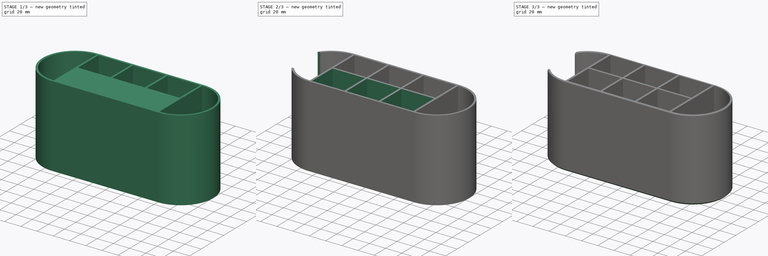
[diagram: build sequence overview — one tinted view per stage of 3, left to right]
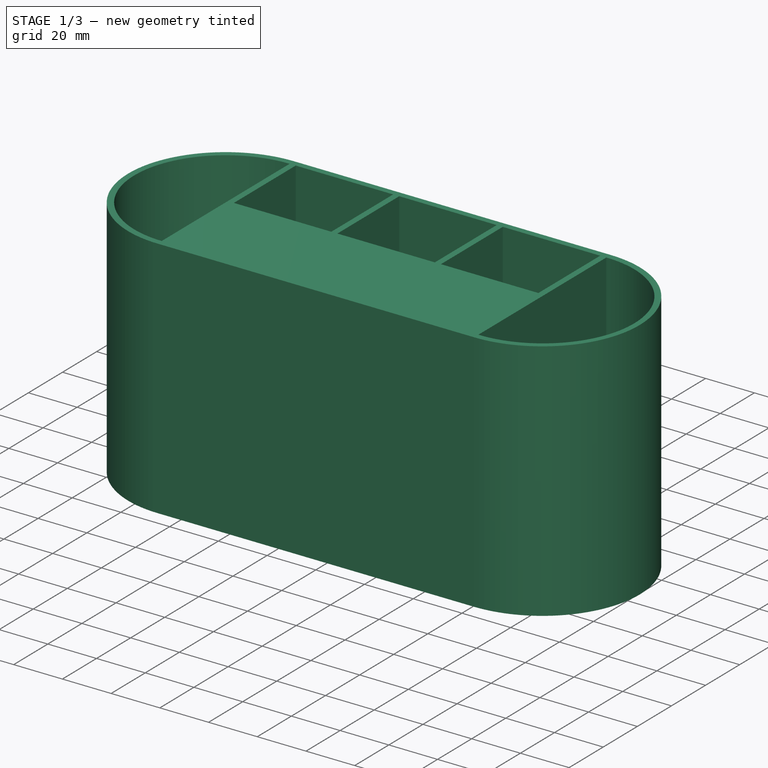
[diagram: stage 1 of 3 — iso view after this stage's code; geometry added in this stage tinted green]
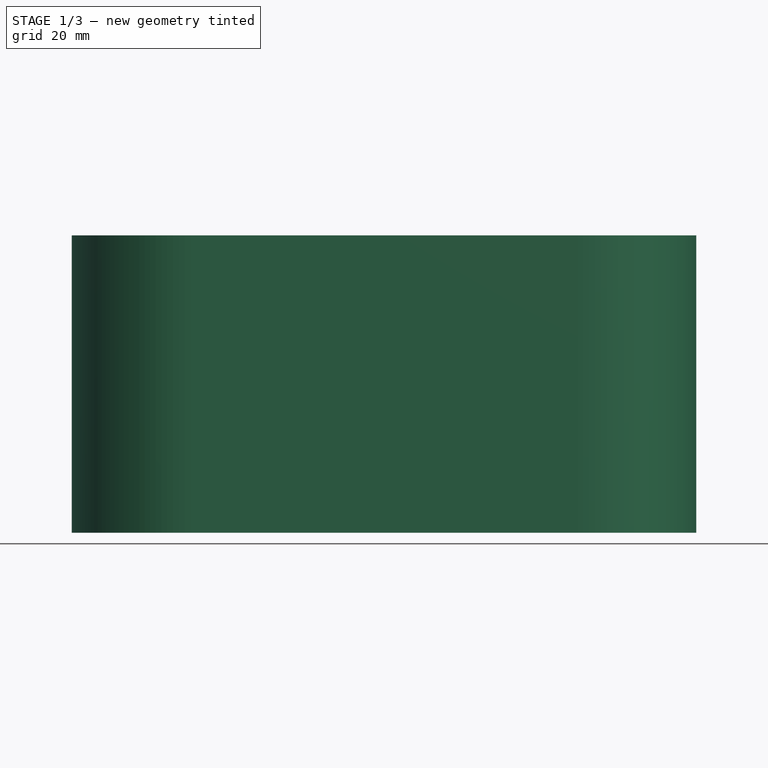
[diagram: stage 1 of 3 — front view after this stage's code; geometry added in this stage tinted green]
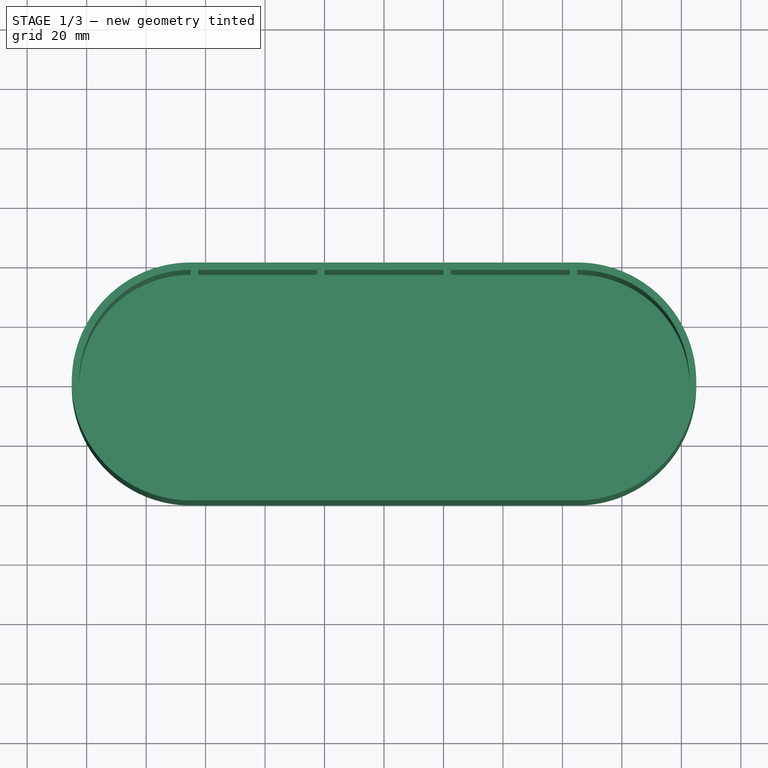
[diagram: stage 1 of 3 — top view after this stage's code; geometry added in this stage tinted green]
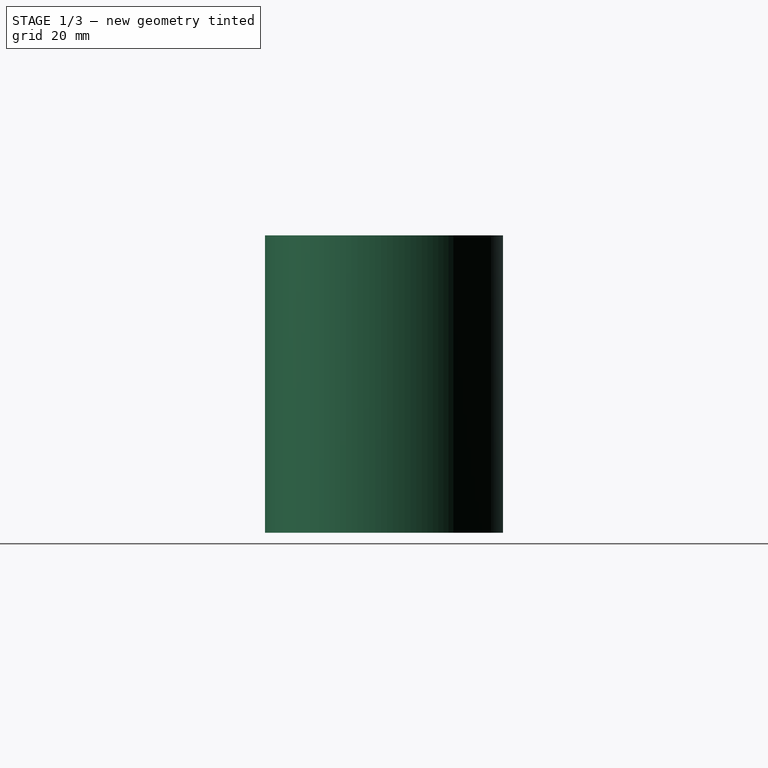
[diagram: stage 1 of 3 — right view after this stage's code; geometry added in this stage tinted green]
FCSTD DOCUMENT  (FreeCAD 0.19R24291 (Git))
Label: pencil holder
License: All rights reserved
LicenseURL: http://en.wikipedia.org/wiki/All_rights_reserved
objects: Sketcher::SketchObject×4, PartDesign::Pocket×3, PartDesign::Fillet×2, PartDesign::Pad×1, PartDesign::Mirrored×1, Spreadsheet::Sheet×1, PartDesign::Plane×1, PartDesign::Chamfer×1, PartDesign::Body×1
note: 21 computed .brp shape members not serialized (recipe doc carries the construction recipe); baked Part::Feature solids carry a one-line shape summary decoded from their .brp

FEATURE [Sketcher::SketchObject] Sketch
  FullyConstrained = true
  MapMode = 5
  Support = -> [XY_Plane]
  expr: Constraints[8] = Spreadsheet.width
  sketch-geometry (4):
    g0: LineSegment StartX=-65 StartY=40 StartZ=0 EndX=65 EndY=40 EndZ=0
    g1: ArcOfCircle CenterX=65 CenterY=-9e-16 CenterZ=0 NormalX=0 NormalY=0 NormalZ=1 AngleXU=0 Radius=40 StartAngle=4.71239 EndAngle=7.85398
    g2: LineSegment StartX=65 StartY=-40 StartZ=0 EndX=-65.0001 EndY=-40 EndZ=0
    g3: ArcOfCircle CenterX=-65.0001 CenterY=-6.3e-15 CenterZ=0 NormalX=0 NormalY=0 NormalZ=1 AngleXU=0 Radius=40 StartAngle=1.5708 EndAngle=4.71239
  constraints (10):
    c: Horizontal(g0)
    c: Tangent(g0,g1) = 1.5708
    c: Tangent(g1,g2) = 1.5708
    c: Tangent(g2,g3) = 1.5708
    c: Coincident(g3,g0)
    c: Radius(g3) = 40
    c: Equal(g1,g3)
    c: DistanceY(g2,g0) = 80
    c: DistanceX(g0,g0) = 130
    c: Symmetric(g0,g1,g-1)
FEATURE [PartDesign::Pad] Pad
  Direction = (1,1,1)
  Length = 100
  Length2 = 100
  Profile = -> Sketch
  Type = 0
FEATURE [Sketcher::SketchObject] Sketch001
  ExternalGeometry = -> [Pad]
  FullyConstrained = true
  MapMode = 5
  Placement = pos=(0,0,100) rot=(0,0,1;0rad)
  Support = -> [Pad]
  expr: Constraints[1] = (Spreadsheet.depth - 5) / 2
  expr: Constraints[10] = Spreadsheet.depth - 5
  expr: Constraints[11] = Spreadsheet.width
  sketch-geometry (4):
    g0: ArcOfCircle CenterX=65.2422 CenterY=-0.000781912 CenterZ=0 NormalX=0 NormalY=0 NormalZ=1 AngleXU=0 Radius=37.5 StartAngle=4.70593 EndAngle=7.86044
    g1: ArcOfCircle CenterX=-65 CenterY=-2.1e-15 CenterZ=0 NormalX=0 NormalY=0 NormalZ=1 AngleXU=0 Radius=37.5 StartAngle=1.5708 EndAngle=4.71239
    g2: LineSegment StartX=-65 StartY=37.5 StartZ=0 EndX=-65 EndY=-37.5 EndZ=0
    g3: LineSegment StartX=65 StartY=37.4984 StartZ=0 EndX=65 EndY=-37.5 EndZ=0
  constraints (13):
    c: Symmetric(g1,g0,g-1)
    c: Radius(g0) = 37.5
    c: Equal(g1,g0)
    c: Coincident(g2,g1)
    c: Coincident(g2,g1)
    c: Vertical(g2)
    c: Coincident(g3,g0)
    c: Coincident(g3,g0)
    c: Vertical(g3)
    c: DistanceY(g1,g-3) = 2.5
    c: DistanceY(g1,g1) = 75
    c: DistanceX(g1,g0) = 130
    c: Angle(g0) = 3.15451
FEATURE [PartDesign::Pocket] Pocket
  BaseFeature = -> Pad
  Length = 95
  Length2 = 100
  Profile = -> Sketch001
  Type = 0
FEATURE [Sketcher::SketchObject] Sketch002
  ExternalGeometry = -> [Pocket]
  FullyConstrained = true
  MapMode = 5
  Placement = pos=(0,0,100) rot=(0,0,1;0rad)
  Support = -> [Pocket]
  sketch-geometry (12):
    g0: LineSegment StartX=-62.5 StartY=37.5 StartZ=0 EndX=-22.5 EndY=37.5 EndZ=0
    g1: LineSegment StartX=-22.5 StartY=37.5 StartZ=0 EndX=-22.5 EndY=1.25 EndZ=0
    g2: LineSegment StartX=-22.5 StartY=1.25 StartZ=0 EndX=-62.5 EndY=1.25 EndZ=0
    g3: LineSegment StartX=-62.5 StartY=1.25 StartZ=0 EndX=-62.5 EndY=37.5 EndZ=0
    g4: LineSegment StartX=-20 StartY=37.5 StartZ=0 EndX=20 EndY=37.5 EndZ=0
    g5: LineSegment StartX=20 StartY=37.5 StartZ=0 EndX=20 EndY=1.25 EndZ=0
    g6: LineSegment StartX=20 StartY=1.25 StartZ=0 EndX=-20 EndY=1.25 EndZ=0
    g7: LineSegment StartX=-20 StartY=1.25 StartZ=0 EndX=-20 EndY=37.5 EndZ=0
    g8: LineSegment StartX=22.5 StartY=37.5 StartZ=0 EndX=62.5 EndY=37.5 EndZ=0
    g9: LineSegment StartX=62.5 StartY=37.5 StartZ=0 EndX=62.5 EndY=1.25 EndZ=0
    g10: LineSegment StartX=62.5 StartY=1.25 StartZ=0 EndX=22.5 EndY=1.25 EndZ=0
    g11: LineSegment StartX=22.5 StartY=1.25 StartZ=0 EndX=22.5 EndY=37.5 EndZ=0
  constraints (36):
    c: Coincident(g0,g1)
    c: Coincident(g1,g2)
    c: Coincident(g2,g3)
    c: Coincident(g3,g0)
    c: Horizontal(g0)
    c: Horizontal(g2)
    c: Vertical(g1)
    c: Vertical(g3)
    c: DistanceY(g0,g-3) = 2.5
    c: DistanceY(g1,g1) = 36.25
    c: Coincident(g4,g5)
    c: Coincident(g5,g6)
    c: Coincident(g6,g7)
    c: Coincident(g7,g4)
    c: Horizontal(g4)
    c: Horizontal(g6)
    c: Vertical(g5)
    c: Vertical(g7)
    c: Coincident(g8,g9)
    c: Coincident(g9,g10)
    c: Coincident(g10,g11)
    c: Coincident(g11,g8)
    c: Horizontal(g8)
    c: Horizontal(g10)
    c: Vertical(g9)
    c: Vertical(g11)
    c: DistanceX(g0,g4) = 2.5
    c: DistanceX(g4,g4) = 40
    c: DistanceX(g0,g0) = 40
    c: DistanceX(g8,g8) = 40
    c: DistanceX(g4,g8) = 2.5
    c: DistanceY(g8,g-3) = 2.5
    c: DistanceY(g4,g-3) = 2.5
    c: DistanceX(g-4,g0) = 2.5
    c: Equal(g1,g7)
    c: Equal(g7,g11)
FEATURE [PartDesign::Pocket] Pocket001
  BaseFeature = -> Pocket
  Length = 95
  Length2 = 100
  Profile = -> Sketch002
  Type = 0
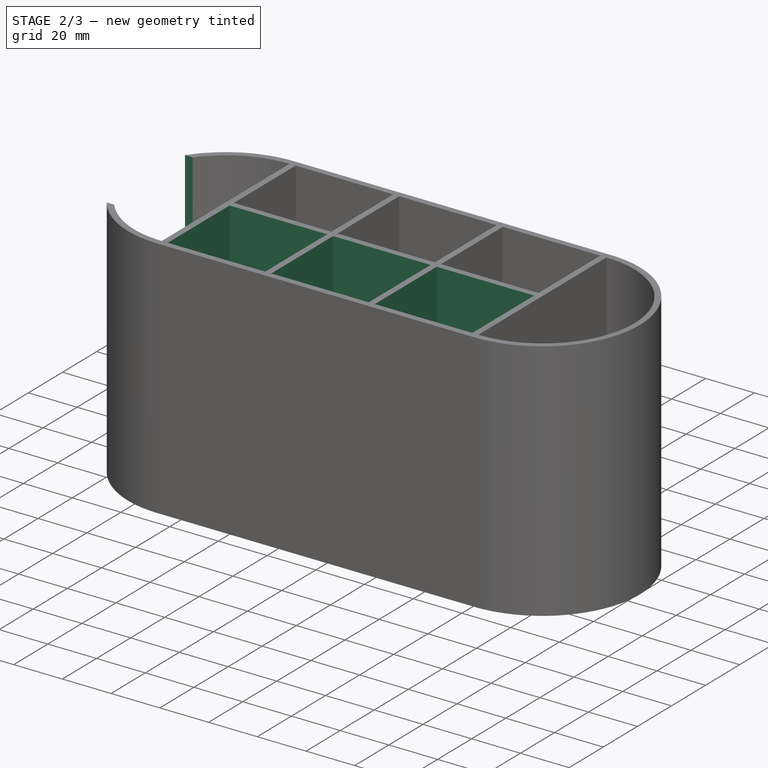
[diagram: stage 2 of 3 — iso view after this stage's code; geometry added in this stage tinted green]
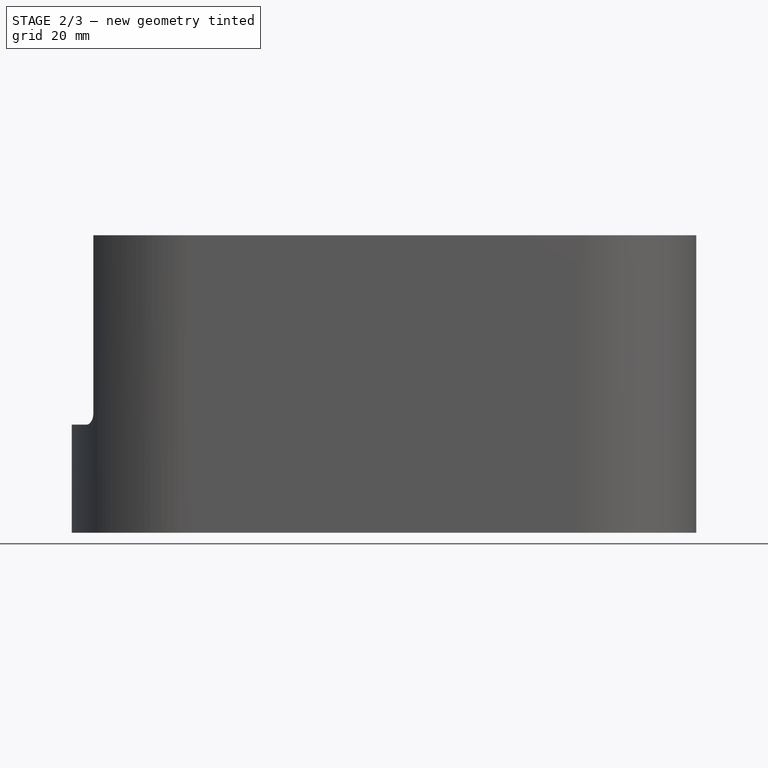
[diagram: stage 2 of 3 — front view after this stage's code; geometry added in this stage tinted green]
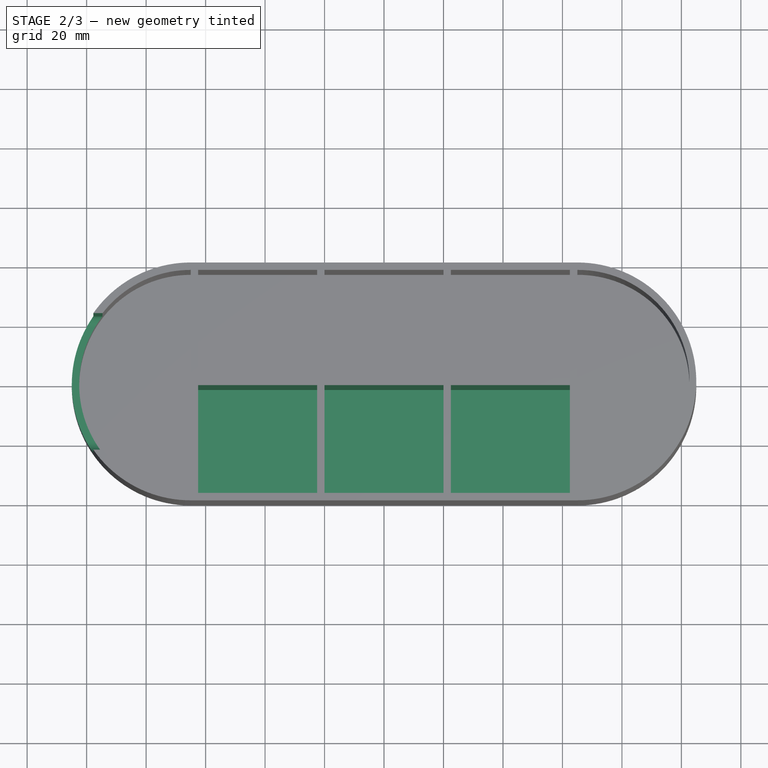
[diagram: stage 2 of 3 — top view after this stage's code; geometry added in this stage tinted green]
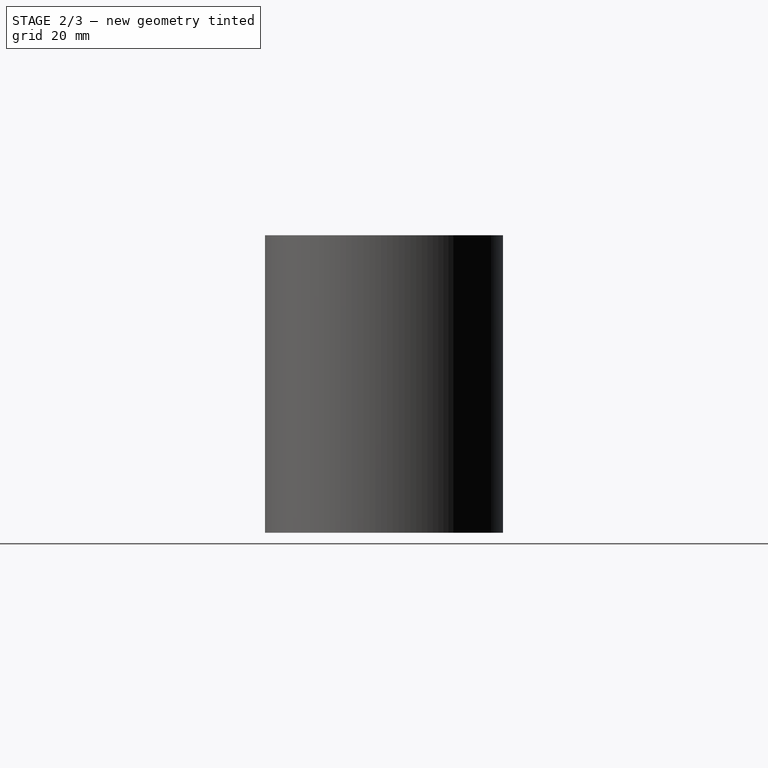
[diagram: stage 2 of 3 — right view after this stage's code; geometry added in this stage tinted green]
FEATURE [PartDesign::Mirrored] Mirrored
  BaseFeature = -> Pocket001
  MirrorPlane = -> Sketch002 [H_Axis]
  Originals = -> [Pocket001]
FEATURE [Spreadsheet::Sheet] Spreadsheet
  cells = A1=length; B1(width)=130; A2=width; B2(depth)=80; A3=height; B3(height)=100
FEATURE [PartDesign::Plane] DatumPlane
  AttachmentOffset = pos=(40,0,0) rot=(0,1,0;1.5708rad)
  Length = 145
  MapMode = 11
  Placement = pos=(-105,5.08608e-05,0) rot=(-0.707107,0,0.707107;3.14159rad)
  ResizeMode = 0
  Support = -> [Mirrored]
  Width = 100
FEATURE [Sketcher::SketchObject] Sketch004
  FullyConstrained = false
  MapMode = 5
  Placement = pos=(-105,5.08608e-05,0) rot=(-0.707107,0,0.707107;3.14159rad)
  Support = -> [DatumPlane]
  sketch-geometry (6):
    g0: LineSegment StartX=-100 StartY=22.962 StartZ=0 EndX=-40 EndY=22.962 EndZ=0
    g1: LineSegment StartX=-36.3282 StartY=19.2902 StartZ=0 EndX=-36.3282 EndY=-19.2902 EndZ=0
    g2: LineSegment StartX=-40 StartY=-22.962 StartZ=0 EndX=-100 EndY=-22.962 EndZ=0
    g3: LineSegment StartX=-100 StartY=-22.962 StartZ=0 EndX=-100 EndY=22.962 EndZ=0
    g4: ArcOfCircle CenterX=-40 CenterY=-19.2902 CenterZ=0 NormalX=0 NormalY=0 NormalZ=1 AngleXU=0 Radius=3.67177 StartAngle=4.71239 EndAngle=6.28319
    g5: ArcOfCircle CenterX=-40 CenterY=19.2902 CenterZ=0 NormalX=0 NormalY=0 NormalZ=1 AngleXU=0 Radius=3.67177 StartAngle=0 EndAngle=1.5708
  constraints (13):
    c: Coincident(g2,g3)
    c: Coincident(g3,g0)
    c: Horizontal(g0)
    c: Horizontal(g2)
    c: Vertical(g1)
    c: Symmetric(g0,g2,g-1)
    c: Tangent(g2,g4) = 1.5708
    c: Tangent(g1,g4) = 1.5708
    c: Tangent(g1,g5) = 1.5708
    c: Tangent(g0,g5) = 1.5708
    c: Equal(g4,g5)
    c: DistanceX(g0,g-1) = 100
    c: DistanceX(g2,g2) = 60
FEATURE [PartDesign::Pocket] Pocket002
  BaseFeature = -> Mirrored
  Length = 5
  Length2 = 100
  Profile = -> Sketch004
  Type = 2
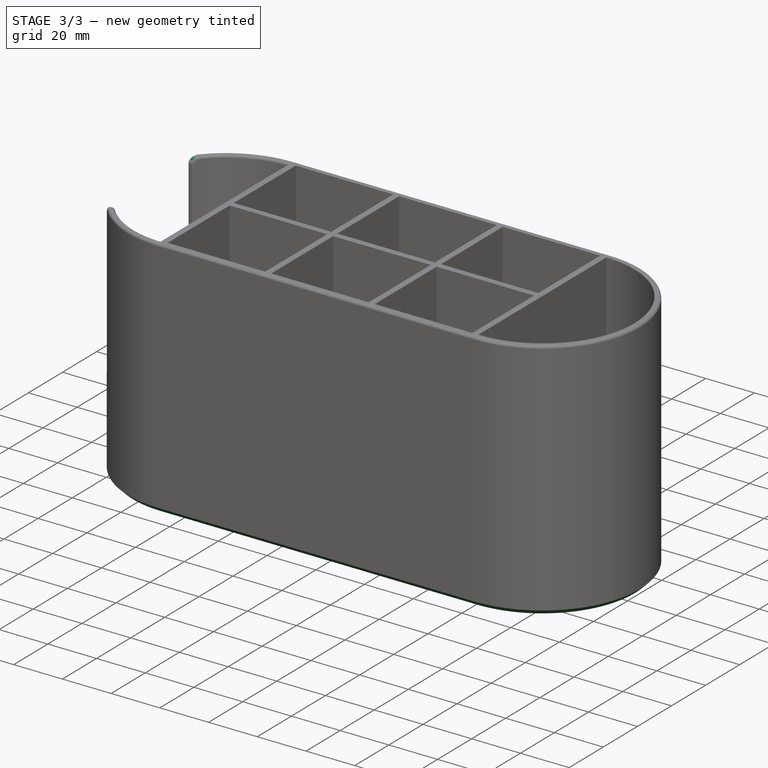
[diagram: stage 3 of 3 — iso view after this stage's code; geometry added in this stage tinted green]
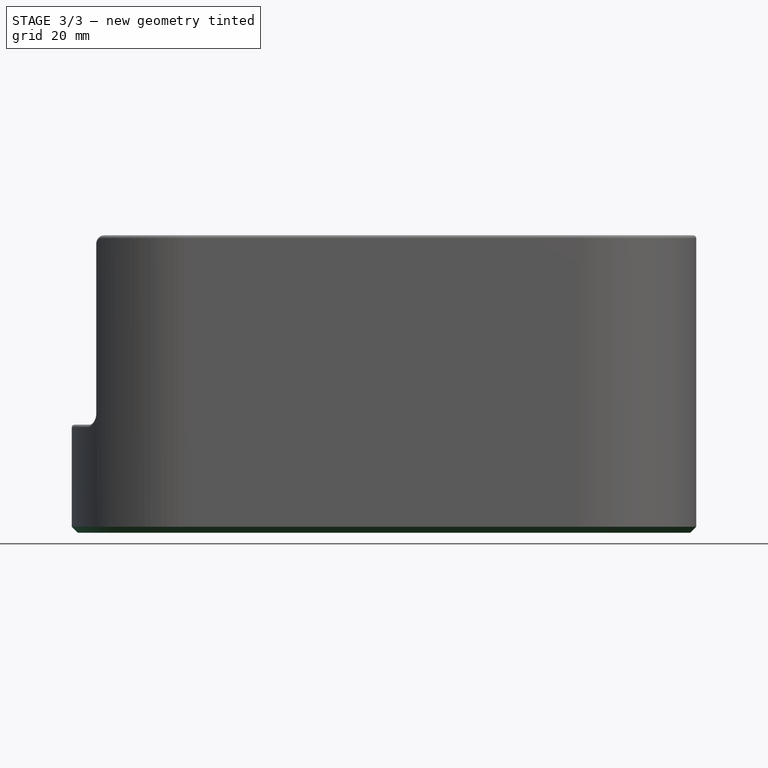
[diagram: stage 3 of 3 — front view after this stage's code; geometry added in this stage tinted green]
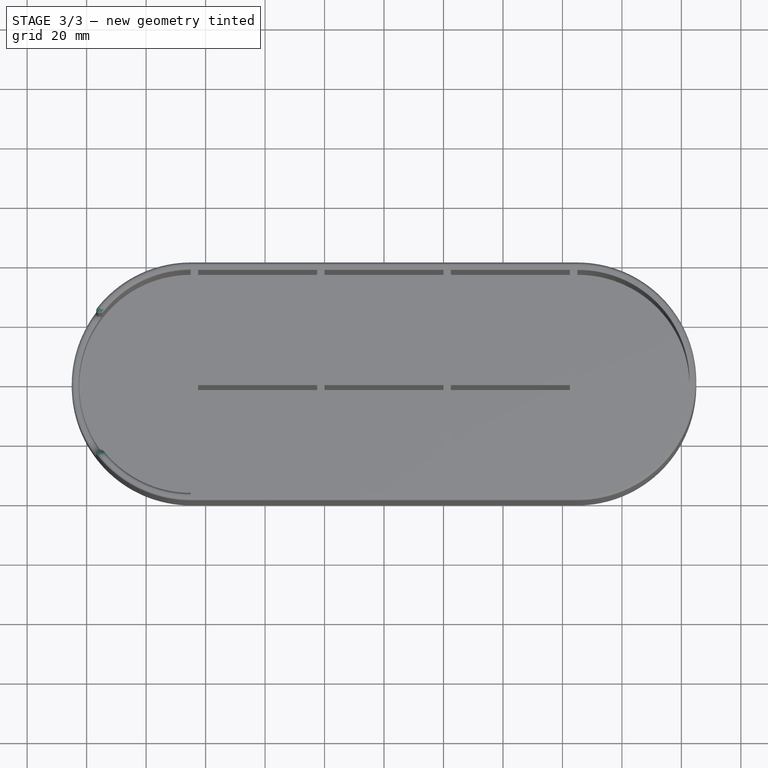
[diagram: stage 3 of 3 — top view after this stage's code; geometry added in this stage tinted green]
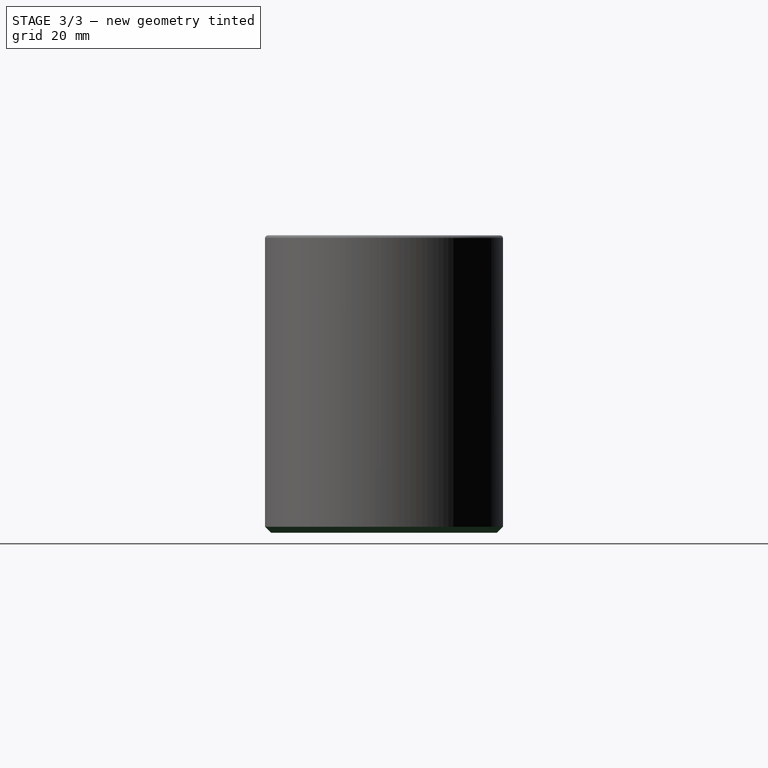
[diagram: stage 3 of 3 — right view after this stage's code; geometry added in this stage tinted green]
FEATURE [PartDesign::Fillet] Fillet
  Base = -> Pocket002 [Edge19,Edge23]
  BaseFeature = -> Pocket002
  Radius = 3
  SupportTransform = false
FEATURE [PartDesign::Fillet] Fillet001
  Base = -> Fillet [Edge13,Edge11,Edge4,Edge6,Edge8,Edge10,Edge12,Edge49,Edge20,Edge53,Edge56,Edge60,Edge16,Edge62,Edge65,Edge63]
  BaseFeature = -> Fillet
  Radius = 1
  SupportTransform = false
FEATURE [PartDesign::Chamfer] Chamfer
  Angle = 45
  Base = -> Fillet001 [Edge20,Edge3,Edge16,Edge21]
  BaseFeature = -> Fillet001
  ChamferType = 0
  FlipDirection = false
  Size = 2
  Size2 = 1
  SupportTransform = false
FEATURE [PartDesign::Body] Body
  Group = -> [Sketch,Pad,Sketch001,Pocket,Sketch002,Pocket001,Mirrored,DatumPlane,Sketch004,Pocket002,Fillet,Fillet001,Chamfer]
  Origin = -> Origin
  Tip = -> Chamfer
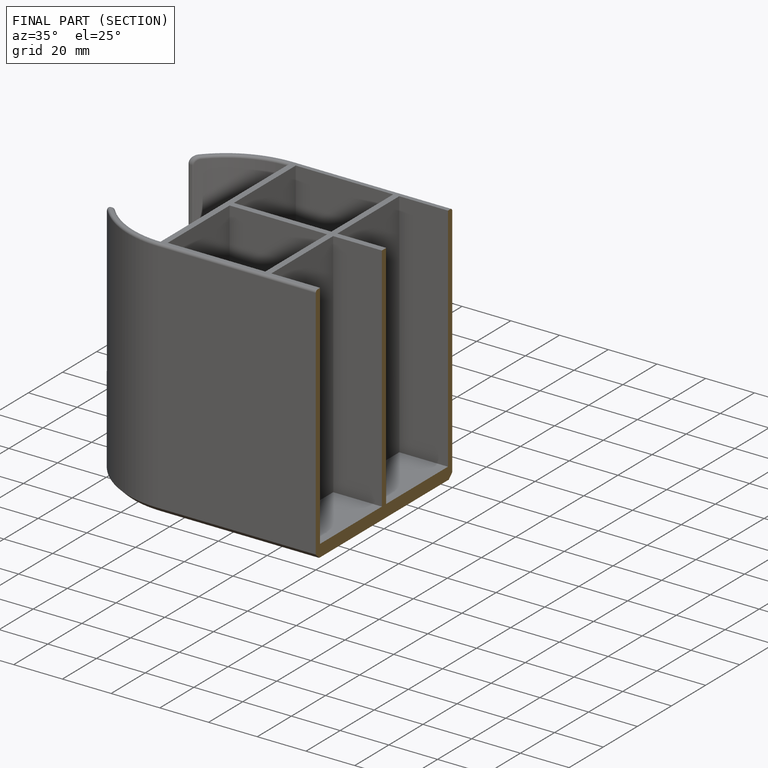
[diagram: finished part — half-section view (interior)]
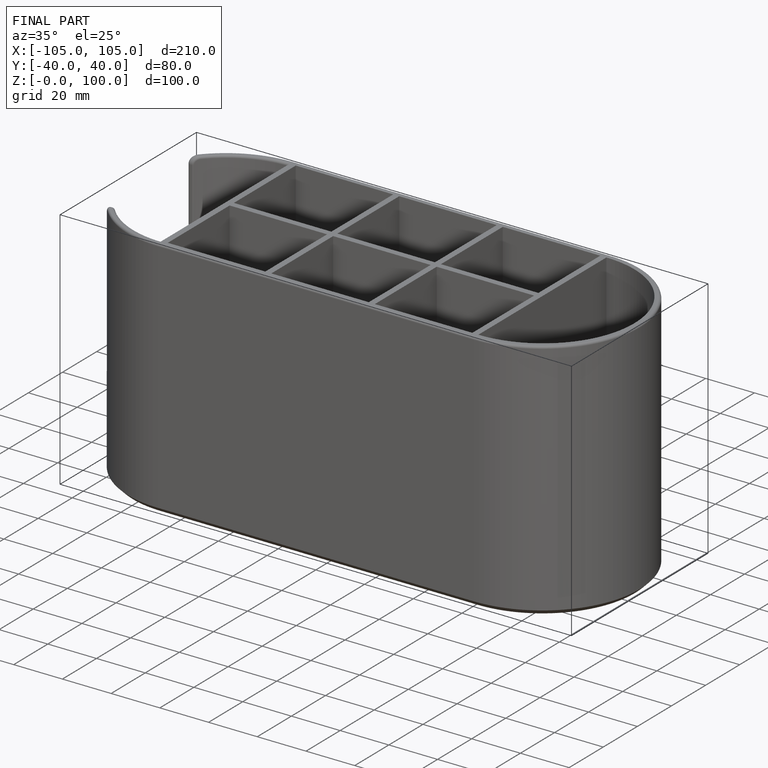
[diagram: finished part — iso view with bounding-box wireframe]
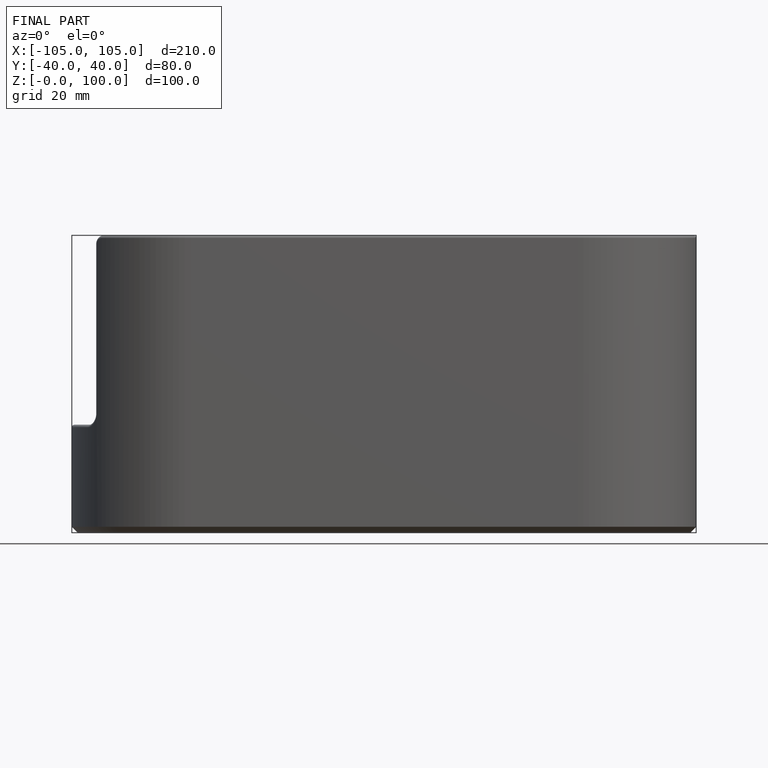
[diagram: finished part — front view with bounding-box wireframe]
